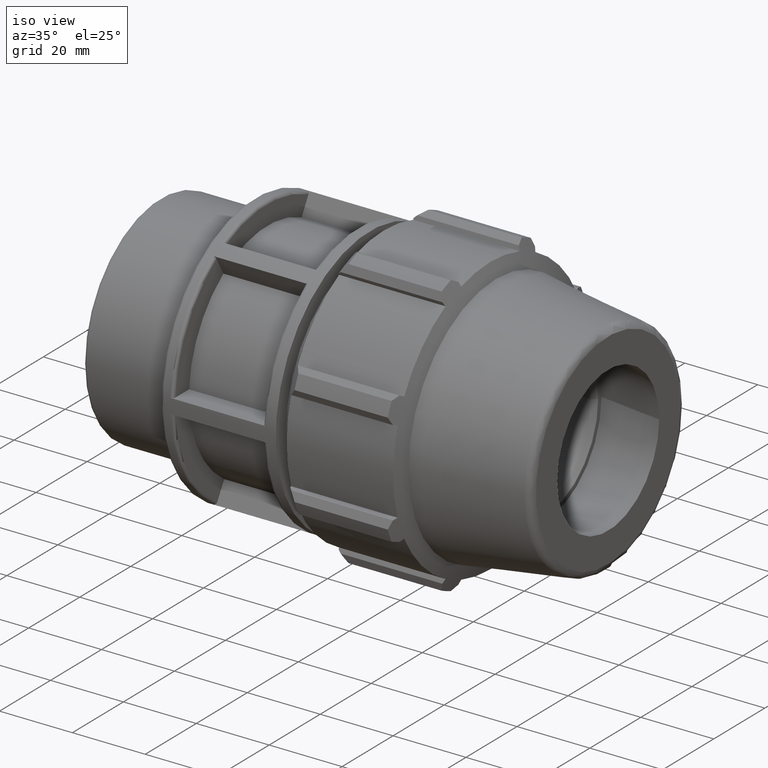
[diagram: clean part render]
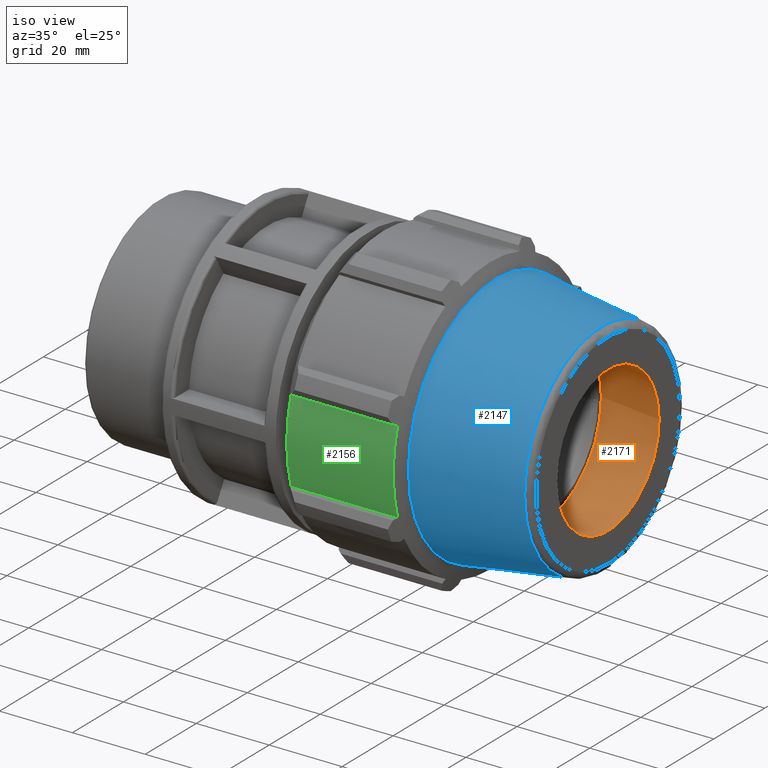
[diagram: same view with three faces highlighted in distinct colors, each labeled with its STEP entity id]
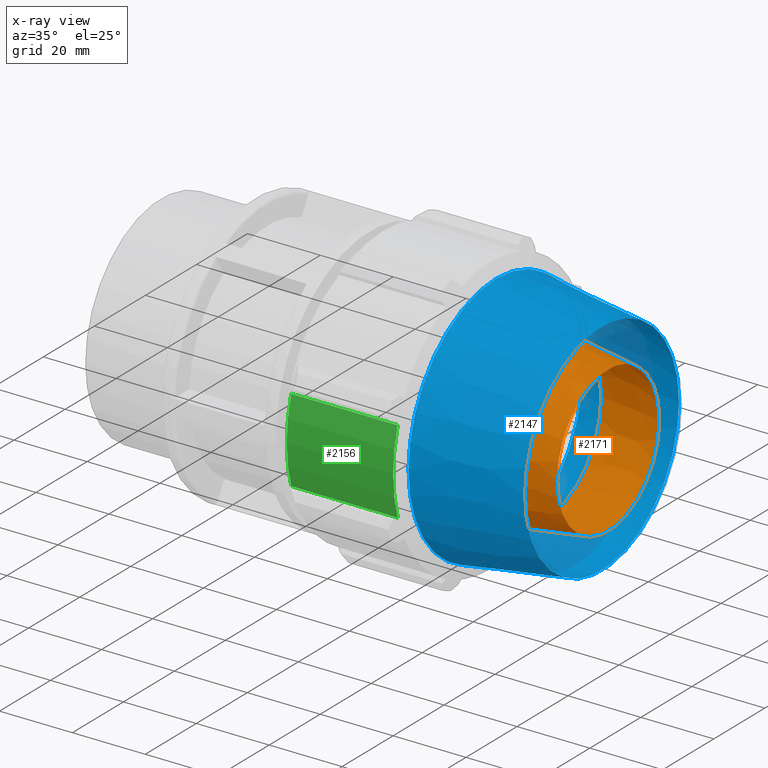
[diagram: x-ray of the same camera — body ghosted, the three highlighted faces saturated]
A machine part, iso view with three faces highlighted in distinct colors.
The next image is the same camera in x-ray (body ghosted, the three faces saturated) — at least one of them is partly hidden behind the body in this view.
Their STEP definitions:

[orange] entity #2171 — the highlighted conical surface has half-angle 8 deg.
#57=CONICAL_SURFACE('',#2384,21.234751619171,8.00000000000002);
#484=FACE_BOUND('',#743,.T.);
#601=FACE_OUTER_BOUND('',#742,.T.);
#742=EDGE_LOOP('',(#1920));
#743=EDGE_LOOP('',(#1921));
#814=CIRCLE('',#2316,22.469503238342);
#835=CIRCLE('',#2359,20.);
#1008=VERTEX_POINT('',#3688);
#1037=VERTEX_POINT('',#3816);
#1268=EDGE_CURVE('',#1008,#1008,#814,.T.);
#1329=EDGE_CURVE('',#1037,#1037,#835,.T.);
#1920=ORIENTED_EDGE('',*,*,#1268,.F.);
#1921=ORIENTED_EDGE('',*,*,#1329,.T.);
#2171=ADVANCED_FACE('',(#601,#484),#57,.F.);
#2316=AXIS2_PLACEMENT_3D('',#3689,#2781,#2782);
#2359=AXIS2_PLACEMENT_3D('',#3817,#2899,#2900);
#2384=AXIS2_PLACEMENT_3D('',#3846,#2951,#2952);
#2781=DIRECTION('center_axis',(1.,0.,0.));
#2782=DIRECTION('ref_axis',(0.,0.,-1.));
#2899=DIRECTION('center_axis',(1.,0.,0.));
#2900=DIRECTION('ref_axis',(0.,0.,-1.));
#2951=DIRECTION('center_axis',(-1.,0.,0.));
#2952=DIRECTION('ref_axis',(0.,1.,0.));
#3688=CARTESIAN_POINT('',(105.428571428571,22.469503238342,0.));
#3689=CARTESIAN_POINT('Origin',(105.428571428571,0.,0.));
#3816=CARTESIAN_POINT('',(123.,20.,0.));
#3817=CARTESIAN_POINT('Origin',(123.,0.,0.));
#3846=CARTESIAN_POINT('Origin',(114.214285714286,0.,0.));

[blue] entity #2147 — the highlighted conical surface has half-angle 8 deg.
#56=CONICAL_SURFACE('',#2357,32.1608153335493,8.00000000000002);
#479=FACE_BOUND('',#714,.T.);
#577=FACE_OUTER_BOUND('',#713,.T.);
#713=EDGE_LOOP('',(#1830));
#714=EDGE_LOOP('',(#1831));
#832=CIRCLE('',#2338,34.3216306670985);
#833=CIRCLE('',#2355,30.2419626618507);
#1034=VERTEX_POINT('',#3771);
#1035=VERTEX_POINT('',#3810);
#1305=EDGE_CURVE('',#1034,#1034,#832,.T.);
#1327=EDGE_CURVE('',#1035,#1035,#833,.T.);
#1830=ORIENTED_EDGE('',*,*,#1305,.T.);
#1831=ORIENTED_EDGE('',*,*,#1327,.F.);
#2147=ADVANCED_FACE('',(#577,#479),#56,.T.);
#2338=AXIS2_PLACEMENT_3D('',#3772,#2836,#2837);
#2355=AXIS2_PLACEMENT_3D('',#3811,#2891,#2892);
#2357=AXIS2_PLACEMENT_3D('',#3814,#2895,#2896);
#2836=DIRECTION('center_axis',(1.,0.,0.));
#2837=DIRECTION('ref_axis',(0.,0.,-1.));
#2891=DIRECTION('center_axis',(1.,0.,0.));
#2892=DIRECTION('ref_axis',(0.,-1.,3.06161699786838E-17));
#2895=DIRECTION('center_axis',(-1.,0.,0.));
#2896=DIRECTION('ref_axis',(0.,1.,0.));
#3771=CARTESIAN_POINT('',(92.25,34.3216306670985,0.));
#3772=CARTESIAN_POINT('Origin',(92.25,0.,0.));
#3810=CARTESIAN_POINT('',(121.27834620192,30.2419626618507,-1.85178613868846E-15));
#3811=CARTESIAN_POINT('Origin',(121.27834620192,0.,-4.62946534672115E-15));
#3814=CARTESIAN_POINT('Origin',(107.625,0.,0.));

[green] entity #2156 — the highlighted cylindrical surface (partial cylindrical patch) has radius 38.13 mm, axis along (1, 0, 0).
#136=LINE('',#3545,#280);
#190=LINE('',#3792,#334);
#280=VECTOR('',#2699,29.2113189118415);
#334=VECTOR('',#2865,29.2113189118415);
#383=CYLINDRICAL_SURFACE('',#2368,38.13);
#586=FACE_OUTER_BOUND('',#724,.T.);
#724=EDGE_LOOP('',(#1866,#1867,#1868,#1869));
#801=CIRCLE('',#2278,38.13);
#824=CIRCLE('',#2330,38.13);
#947=VERTEX_POINT('',#3473);
#948=VERTEX_POINT('',#3475);
#969=VERTEX_POINT('',#3543);
#1024=VERTEX_POINT('',#3740);
#1184=EDGE_CURVE('',#947,#948,#801,.T.);
#1213=EDGE_CURVE('',#947,#969,#136,.T.);
#1291=EDGE_CURVE('',#1024,#969,#824,.T.);
#1317=EDGE_CURVE('',#948,#1024,#190,.T.);
#1866=ORIENTED_EDGE('',*,*,#1291,.F.);
#1867=ORIENTED_EDGE('',*,*,#1317,.F.);
#1868=ORIENTED_EDGE('',*,*,#1184,.F.);
#1869=ORIENTED_EDGE('',*,*,#1213,.T.);
#2156=ADVANCED_FACE('',(#586),#383,.T.);
#2278=AXIS2_PLACEMENT_3D('',#3476,#2656,#2657);
#2330=AXIS2_PLACEMENT_3D('',#3742,#2817,#2818);
#2368=AXIS2_PLACEMENT_3D('',#3829,#2919,#2920);
#2656=DIRECTION('center_axis',(-1.,0.,0.));
#2657=DIRECTION('ref_axis',(0.,0.953716950748227,0.300705799504273));
#2699=DIRECTION('',(1.,0.,0.));
#2817=DIRECTION('center_axis',(1.,0.,0.));
#2818=DIRECTION('ref_axis',(0.,0.953716950748227,0.300705799504273));
#2865=DIRECTION('',(1.,0.,0.));
#2919=DIRECTION('center_axis',(1.,0.,0.));
#2920=DIRECTION('ref_axis',(0.,0.953716950748227,0.300705799504273));
#3473=CARTESIAN_POINT('',(61.5,-36.3652273320299,-11.4659121350979));
#3475=CARTESIAN_POINT('',(61.5,-36.3652273320299,11.4659121350979));
#3476=CARTESIAN_POINT('Origin',(61.5,0.,0.));
#3543=CARTESIAN_POINT('',(90.7113189118415,-36.3652273320299,-11.4659121350979));
#3545=CARTESIAN_POINT('',(61.5,-36.3652273320299,-11.4659121350979));
#3740=CARTESIAN_POINT('',(90.7113189118415,-36.3652273320299,11.4659121350979));
#3742=CARTESIAN_POINT('Origin',(90.7113189118415,0.,0.));
#3792=CARTESIAN_POINT('',(61.5,-36.3652273320299,11.4659121350979));
#3829=CARTESIAN_POINT('Origin',(61.5,0.,0.));